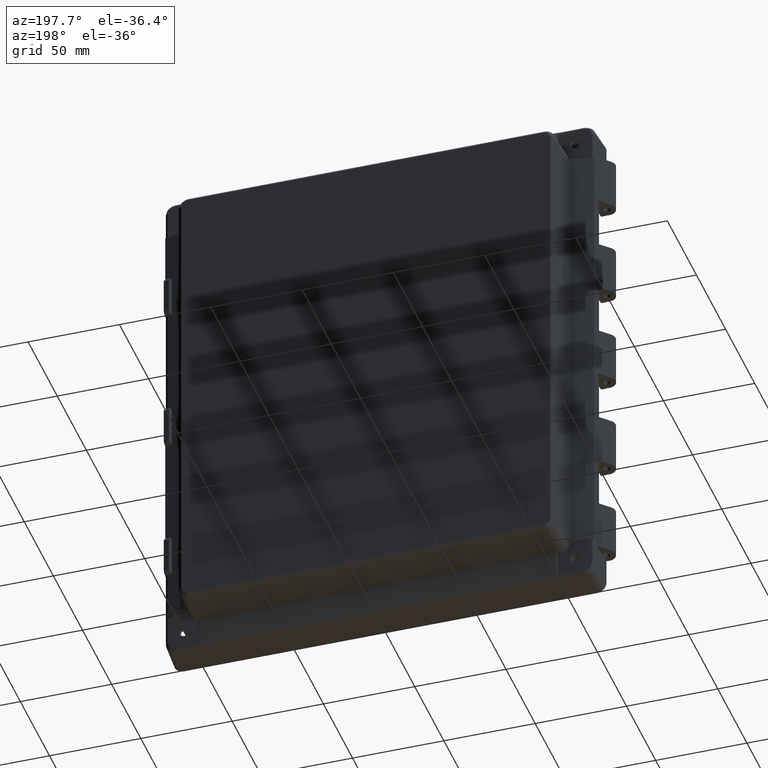
[diagram: clean part render]
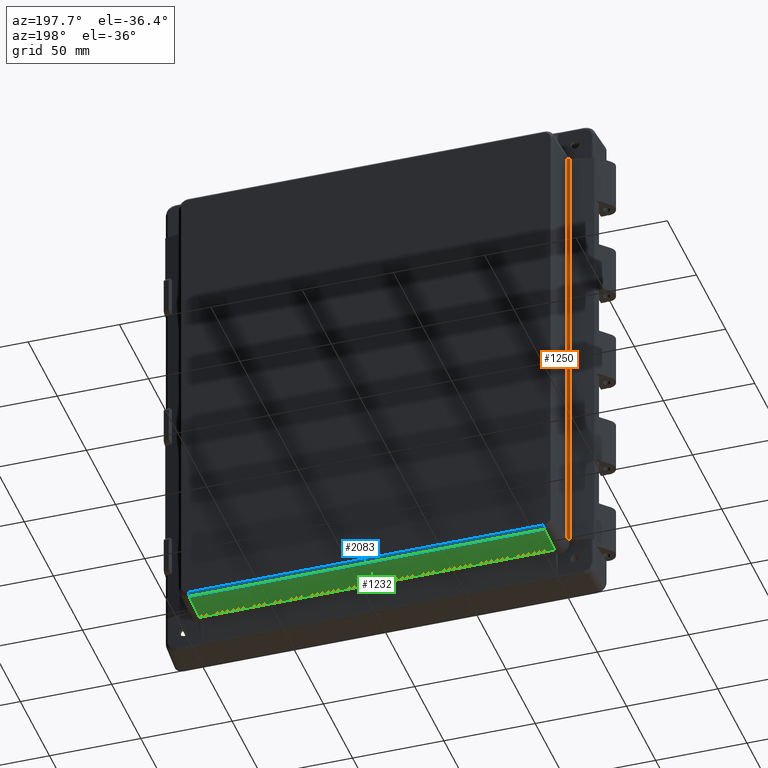
[diagram: same view with three faces highlighted in distinct colors, each labeled with its STEP entity id]
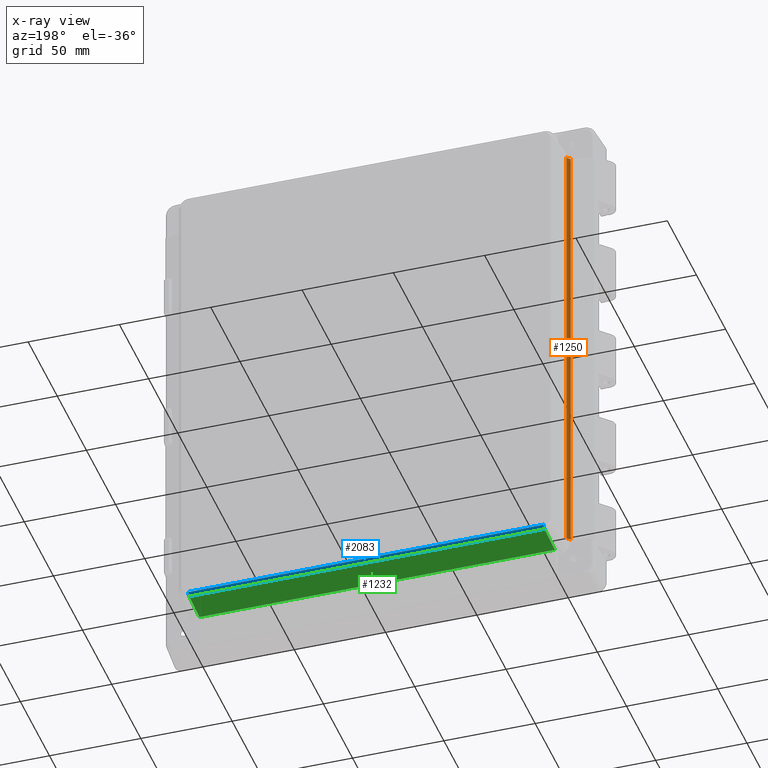
[diagram: x-ray of the same camera — body ghosted, the three highlighted faces saturated]
A machine part, auxiliary view with three faces highlighted in distinct colors.
The next image is the same camera in x-ray (body ghosted, the three faces saturated) — at least one of them is partly hidden behind the body in this view.
Their STEP definitions:

[orange] entity #1250 — the highlighted cylindrical surface (edge-blend (fillet) strip) has radius 2 mm, axis along (0, -0, 1).
#1184 = VERTEX_POINT ( 'NONE', #5925 ) ;
#1200 = VERTEX_POINT ( 'NONE', #5952 ) ;
#1202 = VERTEX_POINT ( 'NONE', #5951 ) ;
#1231 = ORIENTED_EDGE ( 'NONE', *, *, #1257, .F. ) ;
#1247 = VERTEX_POINT ( 'NONE', #6038 ) ;
#1249 = EDGE_CURVE ( 'NONE', #1247, #1184, #6037, .T. ) ;
#1250 = ADVANCED_FACE ( 'NONE', ( #6033 ), #6032, .F. ) ;
#1251 = EDGE_LOOP ( 'NONE', ( #1252, #1254, #1255, #1231 ) ) ;
#1252 = ORIENTED_EDGE ( 'NONE', *, *, #1253, .F. ) ;
#1253 = EDGE_CURVE ( 'NONE', #1184, #1200, #6071, .T. ) ;
#1254 = ORIENTED_EDGE ( 'NONE', *, *, #1249, .F. ) ;
#1255 = ORIENTED_EDGE ( 'NONE', *, *, #1256, .F. ) ;
#1256 = EDGE_CURVE ( 'NONE', #1202, #1247, #6066, .T. ) ;
#1257 = EDGE_CURVE ( 'NONE', #1200, #1202, #6061, .T. ) ;
#5925 = CARTESIAN_POINT ( 'NONE',  ( -105.3249613760728500, 12.58276645524500700, -123.3309053461728700 ) ) ;
#5951 = CARTESIAN_POINT ( 'NONE',  ( -103.7435256881991800, 14.43438974422672600, 123.2338658815286000 ) ) ;
#5952 = CARTESIAN_POINT ( 'NONE',  ( -103.7435256881992100, 14.43438974422673300, -123.2338658815285700 ) ) ;
#6028 = DIRECTION ( 'NONE',  ( 1.000000000000000000, 0.0000000000000000000, 0.0000000000000000000 ) ) ;
#6029 = DIRECTION ( 'NONE',  ( 1.048359647488374200E-016, -2.875979223371249300E-017, 1.000000000000000000 ) ) ;
#6030 = AXIS2_PLACEMENT_3D ( 'NONE', #6031, #6029, #6028 ) ;
#6031 = CARTESIAN_POINT ( 'NONE',  ( -105.7407847577083500, 14.53906165671262100, -144.4759222071695300 ) ) ;
#6032 = CYLINDRICAL_SURFACE ( 'NONE', #6030, 2.000000000000001800 ) ;
#6033 = FACE_OUTER_BOUND ( 'NONE', #1251, .T. ) ;
#6034 = DIRECTION ( 'NONE',  ( -1.048359647488374200E-016, 2.875979223371249300E-017, -1.000000000000000000 ) ) ;
#6035 = VECTOR ( 'NONE', #6034, 1000.000000000000000 ) ;
#6036 = CARTESIAN_POINT ( 'NONE',  ( -105.3249613760728500, 12.58276645524500700, -124.3313808303828300 ) ) ;
#6037 = LINE ( 'NONE', #6036, #6035 ) ;
#6038 = CARTESIAN_POINT ( 'NONE',  ( -105.3249613760728200, 12.58276645524500000, 123.3309053461729000 ) ) ;
#6058 = DIRECTION ( 'NONE',  ( 1.048359647488374200E-016, -2.875979223371249300E-017, 1.000000000000000000 ) ) ;
#6059 = VECTOR ( 'NONE', #6058, 1000.000000000000000 ) ;
#6060 = CARTESIAN_POINT ( 'NONE',  ( -103.7435256881991800, 14.43438974422672600, 123.3141833783587500 ) ) ;
#6061 = LINE ( 'NONE', #6060, #6059 ) ;
#6062 = CARTESIAN_POINT ( 'NONE',  ( -105.3249613760728200, 12.58276645524500000, 123.3309053461729000 ) ) ;
#6063 = CARTESIAN_POINT ( 'NONE',  ( -104.4041634585136800, 12.77848809459428600, 123.3206480096969200 ) ) ;
#6064 = CARTESIAN_POINT ( 'NONE',  ( -103.7927931397431100, 13.49431076706087400, 123.2831333330725000 ) ) ;
#6065 = CARTESIAN_POINT ( 'NONE',  ( -103.7435256881991800, 14.43438974422672600, 123.2338658815286000 ) ) ;
#6066 =( BOUNDED_CURVE ( )  B_SPLINE_CURVE ( 3, ( #6065, #6064, #6063, #6062 ),
 .UNSPECIFIED., .F., .T. ) 
 B_SPLINE_CURVE_WITH_KNOTS ( ( 4, 4 ),
 ( 4.764748857944522500, 6.073745796940272600 ),
 .UNSPECIFIED. ) 
 CURVE ( )  GEOMETRIC_REPRESENTATION_ITEM ( )  RATIONAL_B_SPLINE_CURVE ( ( 1.000000000000000000, 0.8622355601941561500, 0.8622355601941561500, 1.000000000000000000 ) ) 
 REPRESENTATION_ITEM ( '' )  );
#6067 = CARTESIAN_POINT ( 'NONE',  ( -103.7435256881992100, 14.43438974422673300, -123.2338658815285700 ) ) ;
#6068 = CARTESIAN_POINT ( 'NONE',  ( -103.7927931397431300, 13.49431076706088300, -123.2831333330725300 ) ) ;
#6069 = CARTESIAN_POINT ( 'NONE',  ( -104.4041634585137100, 12.77848809459429100, -123.3206480096969500 ) ) ;
#6070 = CARTESIAN_POINT ( 'NONE',  ( -105.3249613760728500, 12.58276645524500700, -123.3309053461728700 ) ) ;
#6071 =( BOUNDED_CURVE ( )  B_SPLINE_CURVE ( 3, ( #6070, #6069, #6068, #6067 ),
 .UNSPECIFIED., .F., .T. ) 
 B_SPLINE_CURVE_WITH_KNOTS ( ( 4, 4 ),
 ( 3.351032163829110300, 4.660029102824862200 ),
 .UNSPECIFIED. ) 
 CURVE ( )  GEOMETRIC_REPRESENTATION_ITEM ( )  RATIONAL_B_SPLINE_CURVE ( ( 1.000000000000000000, 0.8622355601941557000, 0.8622355601941557000, 1.000000000000000000 ) ) 
 REPRESENTATION_ITEM ( '' )  );

[blue] entity #2083 — the highlighted planar face has unit normal (0, -0.7431, 0.6691).
#1235 = EDGE_CURVE ( 'NONE', #1236, #1237, #6003, .T. ) ;
#1236 = VERTEX_POINT ( 'NONE', #6057 ) ;
#1237 = VERTEX_POINT ( 'NONE', #6056 ) ;
#1870 = EDGE_CURVE ( 'NONE', #1871, #1872, #7293, .T. ) ;
#1871 = VERTEX_POINT ( 'NONE', #7286 ) ;
#1872 = VERTEX_POINT ( 'NONE', #7285 ) ;
#2037 = EDGE_CURVE ( 'NONE', #1871, #1237, #7624, .T. ) ;
#2083 = ADVANCED_FACE ( 'NONE', ( #7743 ), #7745, .F. ) ;
#2084 = ORIENTED_EDGE ( 'NONE', *, *, #2037, .T. ) ;
#2085 = ORIENTED_EDGE ( 'NONE', *, *, #1235, .F. ) ;
#2086 = ORIENTED_EDGE ( 'NONE', *, *, #2087, .F. ) ;
#2087 = EDGE_CURVE ( 'NONE', #1872, #1236, #7778, .T. ) ;
#2088 = ORIENTED_EDGE ( 'NONE', *, *, #1870, .F. ) ;
#2107 = EDGE_LOOP ( 'NONE', ( #2084, #2085, #2086, #2088 ) ) ;
#5995 = DIRECTION ( 'NONE',  ( 1.000000000000000000, -0.0000000000000000000, -0.0000000000000000000 ) ) ;
#5996 = VECTOR ( 'NONE', #5995, 1000.000000000000000 ) ;
#5997 = CARTESIAN_POINT ( 'NONE',  ( 97.22567306322643800, 32.50205569786808700, -128.7966394387410100 ) ) ;
#6003 = LINE ( 'NONE', #5997, #5996 ) ;
#6056 = CARTESIAN_POINT ( 'NONE',  ( 97.30417699759087200, 32.50205569786810900, -128.7966394387410100 ) ) ;
#6057 = CARTESIAN_POINT ( 'NONE',  ( -97.30417699759087200, 32.50205569786810900, -128.7966394387410100 ) ) ;
#7285 = CARTESIAN_POINT ( 'NONE',  ( -97.30417699759088600, 34.00000000000000000, -127.1330037502762000 ) ) ;
#7286 = CARTESIAN_POINT ( 'NONE',  ( 97.30417699759088600, 34.00000000000000000, -127.1330037502762600 ) ) ;
#7287 = DIRECTION ( 'NONE',  ( -1.000000000000000000, 0.0000000000000000000, 0.0000000000000000000 ) ) ;
#7288 = VECTOR ( 'NONE', #7287, 1000.000000000000000 ) ;
#7289 = CARTESIAN_POINT ( 'NONE',  ( -97.22567306322646600, 34.00000000000000000, -127.1330037502762000 ) ) ;
#7293 = LINE ( 'NONE', #7289, #7288 ) ;
#7620 = CARTESIAN_POINT ( 'NONE',  ( 97.30417699759087200, 32.50205569786810900, -128.7966394387410100 ) ) ;
#7621 = CARTESIAN_POINT ( 'NONE',  ( 97.30417699759100000, 33.00137046524539400, -128.2420942092527400 ) ) ;
#7622 = CARTESIAN_POINT ( 'NONE',  ( 97.30417699759100000, 33.50068523262270000, -127.6875489797644700 ) ) ;
#7623 = CARTESIAN_POINT ( 'NONE',  ( 97.30417699759088600, 34.00000000000000000, -127.1330037502762600 ) ) ;
#7624 = B_SPLINE_CURVE_WITH_KNOTS ( 'NONE', 3,
 ( #7623, #7622, #7621, #7620 ),
 .UNSPECIFIED., .F., .F.,
 ( 4, 4 ),
 ( 0.0000000000000000000, 1.000000000000000000 ),
 .UNSPECIFIED. ) ;
#7735 = DIRECTION ( 'NONE',  ( 0.0000000000000000000, -0.6691306063588503500, -0.7431448254774012400 ) ) ;
#7736 = DIRECTION ( 'NONE',  ( 0.0000000000000000000, -0.7431448254774012400, 0.6691306063588503500 ) ) ;
#7737 = CARTESIAN_POINT ( 'NONE',  ( -104.5000000000000100, 34.00000000000000000, -127.1330037502762000 ) ) ;
#7738 = AXIS2_PLACEMENT_3D ( 'NONE', #7737, #7736, #7735 ) ;
#7743 = FACE_OUTER_BOUND ( 'NONE', #2107, .T. ) ;
#7745 = PLANE ( 'NONE',  #7738 ) ;
#7775 = CARTESIAN_POINT ( 'NONE',  ( -97.30417699759087200, 32.50205569786810900, -128.7966394387410100 ) ) ;
#7776 = CARTESIAN_POINT ( 'NONE',  ( -97.30417699759088600, 34.00000000000000000, -127.1330037502762000 ) ) ;
#7778 = B_SPLINE_CURVE_WITH_KNOTS ( 'NONE', 1,
 ( #7776, #7775 ),
 .UNSPECIFIED., .F., .F.,
 ( 2, 2 ),
 ( 0.0000000000000000000, 1.000000000000000000 ),
 .UNSPECIFIED. ) ;

[green] entity #1232 — the highlighted planar face has unit normal (0, 0.0523, -0.9986).
#1212 = VERTEX_POINT ( 'NONE', #5989 ) ;
#1214 = EDGE_CURVE ( 'NONE', #1215, #1212, #5988, .T. ) ;
#1215 = VERTEX_POINT ( 'NONE', #5979 ) ;
#1219 = EDGE_CURVE ( 'NONE', #1305, #1236, #5782, .T. ) ;
#1232 = ADVANCED_FACE ( 'NONE', ( #6004 ), #6002, .T. ) ;
#1233 = EDGE_LOOP ( 'NONE', ( #1234, #1238, #1241, #1243, #1303, #1306 ) ) ;
#1234 = ORIENTED_EDGE ( 'NONE', *, *, #1235, .T. ) ;
#1235 = EDGE_CURVE ( 'NONE', #1236, #1237, #6003, .T. ) ;
#1236 = VERTEX_POINT ( 'NONE', #6057 ) ;
#1237 = VERTEX_POINT ( 'NONE', #6056 ) ;
#1238 = ORIENTED_EDGE ( 'NONE', *, *, #1239, .F. ) ;
#1239 = EDGE_CURVE ( 'NONE', #1240, #1237, #6055, .T. ) ;
#1240 = VERTEX_POINT ( 'NONE', #6051 ) ;
#1241 = ORIENTED_EDGE ( 'NONE', *, *, #1242, .T. ) ;
#1242 = EDGE_CURVE ( 'NONE', #1240, #1215, #6050, .T. ) ;
#1243 = ORIENTED_EDGE ( 'NONE', *, *, #1214, .T. ) ;
#1303 = ORIENTED_EDGE ( 'NONE', *, *, #1304, .F. ) ;
#1304 = EDGE_CURVE ( 'NONE', #1305, #1212, #6145, .T. ) ;
#1305 = VERTEX_POINT ( 'NONE', #6141 ) ;
#1306 = ORIENTED_EDGE ( 'NONE', *, *, #1219, .T. ) ;
#5765 = CARTESIAN_POINT ( 'NONE',  ( -97.30417699759087200, 32.50205569786810900, -128.7966394387410100 ) ) ;
#5782 = LINE ( 'NONE', #5765, #6027 ) ;
#5979 = CARTESIAN_POINT ( 'NONE',  ( 97.22260077518521400, 14.64934077816795200, -129.7322605818557100 ) ) ;
#5980 = DIRECTION ( 'NONE',  ( -1.000000000000000000, 0.0000000000000000000, 0.0000000000000000000 ) ) ;
#5981 = VECTOR ( 'NONE', #5980, 1000.000000000000000 ) ;
#5982 = CARTESIAN_POINT ( 'NONE',  ( -97.30291835851903700, 14.64934077816795200, -129.7322605818557100 ) ) ;
#5988 = LINE ( 'NONE', #5982, #5981 ) ;
#5989 = CARTESIAN_POINT ( 'NONE',  ( -97.22260077518517100, 14.64934077816795200, -129.7322605818557100 ) ) ;
#5995 = DIRECTION ( 'NONE',  ( 1.000000000000000000, -0.0000000000000000000, -0.0000000000000000000 ) ) ;
#5996 = VECTOR ( 'NONE', #5995, 1000.000000000000000 ) ;
#5997 = CARTESIAN_POINT ( 'NONE',  ( 97.22567306322643800, 32.50205569786808700, -128.7966394387410100 ) ) ;
#5998 = DIRECTION ( 'NONE',  ( 0.0000000000000000000, 0.9986295347545739400, 0.05233595624294395300 ) ) ;
#5999 = DIRECTION ( 'NONE',  ( 0.0000000000000000000, 0.05233595624294395300, -0.9986295347545739400 ) ) ;
#6000 = CARTESIAN_POINT ( 'NONE',  ( -104.5000000000000400, 0.0000000000000000000, -130.5000000000000000 ) ) ;
#6001 = AXIS2_PLACEMENT_3D ( 'NONE', #6000, #5999, #5998 ) ;
#6002 = PLANE ( 'NONE',  #6001 ) ;
#6003 = LINE ( 'NONE', #5997, #5996 ) ;
#6004 = FACE_OUTER_BOUND ( 'NONE', #1233, .T. ) ;
#6026 = DIRECTION ( 'NONE',  ( -0.0000000000000000000, 0.9986295347545739400, 0.05233595624294396000 ) ) ;
#6027 = VECTOR ( 'NONE', #6026, 1000.000000000000000 ) ;
#6047 = DIRECTION ( 'NONE',  ( -0.05226442768871403200, 0.9972646886342372300, 0.05226442768871402500 ) ) ;
#6048 = VECTOR ( 'NONE', #6047, 1000.000000000000200 ) ;
#6049 = CARTESIAN_POINT ( 'NONE',  ( 97.43722357344161400, 10.55409382833423500, -129.9468833801121500 ) ) ;
#6050 = LINE ( 'NONE', #6049, #6048 ) ;
#6051 = CARTESIAN_POINT ( 'NONE',  ( 97.30417699759087200, 13.09277372797624000, -129.8138368042614300 ) ) ;
#6052 = DIRECTION ( 'NONE',  ( -0.0000000000000000000, 0.9986295347545739400, 0.05233595624294395300 ) ) ;
#6053 = VECTOR ( 'NONE', #6052, 1000.000000000000000 ) ;
#6054 = CARTESIAN_POINT ( 'NONE',  ( 97.30417699759087200, 32.50205569786810900, -128.7966394387410100 ) ) ;
#6055 = LINE ( 'NONE', #6054, #6053 ) ;
#6056 = CARTESIAN_POINT ( 'NONE',  ( 97.30417699759087200, 32.50205569786810900, -128.7966394387410100 ) ) ;
#6057 = CARTESIAN_POINT ( 'NONE',  ( -97.30417699759087200, 32.50205569786810900, -128.7966394387410100 ) ) ;
#6141 = CARTESIAN_POINT ( 'NONE',  ( -97.30417699759087200, 13.09277372797624000, -129.8138368042614300 ) ) ;
#6142 = DIRECTION ( 'NONE',  ( 0.05226442768871403200, 0.9972646886342372300, 0.05226442768871402500 ) ) ;
#6143 = VECTOR ( 'NONE', #6142, 1000.000000000000200 ) ;
#6144 = CARTESIAN_POINT ( 'NONE',  ( -96.77430253791411000, 23.20338072040490100, -129.2839623445847200 ) ) ;
#6145 = LINE ( 'NONE', #6144, #6143 ) ;